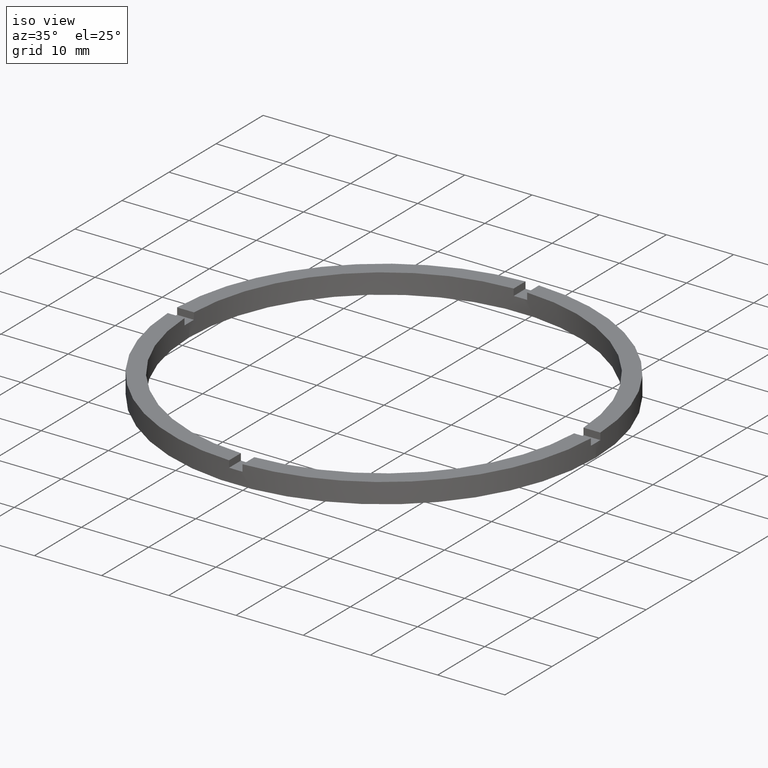
[diagram: clean part render]
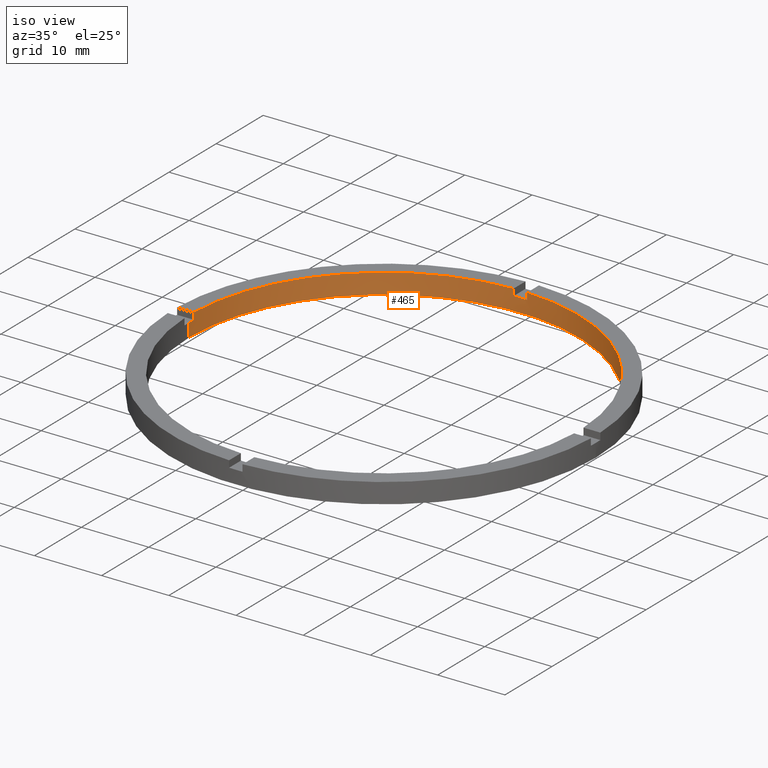
[diagram: same view with one face highlighted and labeled with its STEP entity id]
A machine part, iso view. The second image highlights one B-rep face of the part: STEP entity #465.
In plain terms, the highlighted cylindrical surface (partial cylindrical patch) has radius 29 mm, axis along (-0, -0, -1).
Its self-contained STEP definition (entity closure, byte-faithful):
#2 = ORIENTED_EDGE ( 'NONE', *, *, #430, .T. ) ;
#3 = ORIENTED_EDGE ( 'NONE', *, *, #610, .T. ) ;
#8 = DIRECTION ( 'NONE',  ( 1.000000000000000000, 0.000000000000000000, 0.000000000000000000 ) ) ;
#17 = VECTOR ( 'NONE', #274, 1000.000000000000000 ) ;
#23 = VERTEX_POINT ( 'NONE', #662 ) ;
#47 = CIRCLE ( 'NONE', #144, 29.00000000000000000 ) ;
#66 = CARTESIAN_POINT ( 'NONE',  ( 29.00000000000000000, 3.551475717527324030E-15, 3.000000000000000000 ) ) ;
#67 = CARTESIAN_POINT ( 'NONE',  ( 0.9999999999999754641, 28.98275349237887966, 3.000000000000000000 ) ) ;
#75 = DIRECTION ( 'NONE',  ( -0.000000000000000000, -0.000000000000000000, -1.000000000000000000 ) ) ;
#78 = CIRCLE ( 'NONE', #293, 29.00000000000000000 ) ;
#80 = VECTOR ( 'NONE', #75, 1000.000000000000000 ) ;
#84 = DIRECTION ( 'NONE',  ( 0.000000000000000000, -0.000000000000000000, 1.000000000000000000 ) ) ;
#87 = EDGE_CURVE ( 'NONE', #266, #550, #684, .T. ) ;
#99 = AXIS2_PLACEMENT_3D ( 'NONE', #281, #84, #532 ) ;
#100 = LINE ( 'NONE', #676, #80 ) ;
#102 = DIRECTION ( 'NONE',  ( 0.000000000000000000, 0.000000000000000000, 1.000000000000000000 ) ) ;
#106 = VECTOR ( 'NONE', #188, 1000.000000000000000 ) ;
#110 = AXIS2_PLACEMENT_3D ( 'NONE', #319, #126, #240 ) ;
#126 = DIRECTION ( 'NONE',  ( 0.000000000000000000, 0.000000000000000000, 1.000000000000000000 ) ) ;
#131 = CARTESIAN_POINT ( 'NONE',  ( 0.000000000000000000, 0.000000000000000000, 3.000000000000000000 ) ) ;
#144 = AXIS2_PLACEMENT_3D ( 'NONE', #437, #570, #736 ) ;
#152 = EDGE_CURVE ( 'NONE', #23, #205, #177, .T. ) ;
#176 = CARTESIAN_POINT ( 'NONE',  ( 0.000000000000000000, 0.000000000000000000, 2.000000000000000000 ) ) ;
#177 = LINE ( 'NONE', #497, #196 ) ;
#188 = DIRECTION ( 'NONE',  ( -0.000000000000000000, -0.000000000000000000, -1.000000000000000000 ) ) ;
#190 = EDGE_CURVE ( 'NONE', #451, #772, #378, .T. ) ;
#196 = VECTOR ( 'NONE', #556, 1000.000000000000000 ) ;
#204 = DIRECTION ( 'NONE',  ( -0.000000000000000000, -0.000000000000000000, -1.000000000000000000 ) ) ;
#205 = VERTEX_POINT ( 'NONE', #328 ) ;
#209 = ORIENTED_EDGE ( 'NONE', *, *, #651, .T. ) ;
#210 = ORIENTED_EDGE ( 'NONE', *, *, #780, .F. ) ;
#240 = DIRECTION ( 'NONE',  ( 1.000000000000000000, 0.000000000000000000, 0.000000000000000000 ) ) ;
#260 = CARTESIAN_POINT ( 'NONE',  ( 0.000000000000000000, 0.000000000000000000, 3.000000000000000000 ) ) ;
#266 = VERTEX_POINT ( 'NONE', #581 ) ;
#274 = DIRECTION ( 'NONE',  ( 0.000000000000000000, 0.000000000000000000, 1.000000000000000000 ) ) ;
#281 = CARTESIAN_POINT ( 'NONE',  ( 0.000000000000000000, 0.000000000000000000, 2.000000000000000000 ) ) ;
#293 = AXIS2_PLACEMENT_3D ( 'NONE', #176, #102, #8 ) ;
#294 = VERTEX_POINT ( 'NONE', #323 ) ;
#318 = EDGE_CURVE ( 'NONE', #456, #559, #566, .T. ) ;
#319 = CARTESIAN_POINT ( 'NONE',  ( 0.000000000000000000, 0.000000000000000000, 0.000000000000000000 ) ) ;
#323 = CARTESIAN_POINT ( 'NONE',  ( -1.000000000000024425, 28.98275349237887610, 3.000000000000000000 ) ) ;
#328 = CARTESIAN_POINT ( 'NONE',  ( -29.00000000000000000, 0.000000000000000000, 0.000000000000000000 ) ) ;
#332 = DIRECTION ( 'NONE',  ( 1.000000000000000000, 0.000000000000000000, 0.000000000000000000 ) ) ;
#337 = AXIS2_PLACEMENT_3D ( 'NONE', #260, #650, #544 ) ;
#340 = EDGE_CURVE ( 'NONE', #451, #559, #47, .T. ) ;
#351 = CARTESIAN_POINT ( 'NONE',  ( 28.98275349237888321, 0.9999999999998414602, 3.000000000000000000 ) ) ;
#358 = CYLINDRICAL_SURFACE ( 'NONE', #337, 29.00000000000000000 ) ;
#360 = DIRECTION ( 'NONE',  ( 0.000000000000000000, 0.000000000000000000, 1.000000000000000000 ) ) ;
#361 = CIRCLE ( 'NONE', #99, 29.00000000000000000 ) ;
#364 = CIRCLE ( 'NONE', #741, 29.00000000000000000 ) ;
#371 = FACE_OUTER_BOUND ( 'NONE', #513, .T. ) ;
#374 = VECTOR ( 'NONE', #360, 1000.000000000000000 ) ;
#378 = LINE ( 'NONE', #389, #106 ) ;
#384 = EDGE_CURVE ( 'NONE', #294, #751, #514, .T. ) ;
#389 = CARTESIAN_POINT ( 'NONE',  ( 28.98275349237888321, 0.9999999999998414602, 3.000000000000000000 ) ) ;
#423 = DIRECTION ( 'NONE',  ( 1.000000000000000000, 0.000000000000000000, 0.000000000000000000 ) ) ;
#430 = EDGE_CURVE ( 'NONE', #266, #772, #78, .T. ) ;
#433 = EDGE_CURVE ( 'NONE', #550, #205, #613, .T. ) ;
#436 = ORIENTED_EDGE ( 'NONE', *, *, #318, .F. ) ;
#437 = CARTESIAN_POINT ( 'NONE',  ( 0.000000000000000000, 0.000000000000000000, 3.000000000000000000 ) ) ;
#442 = ORIENTED_EDGE ( 'NONE', *, *, #340, .T. ) ;
#451 = VERTEX_POINT ( 'NONE', #351 ) ;
#456 = VERTEX_POINT ( 'NONE', #589 ) ;
#465 = ADVANCED_FACE ( 'NONE', ( #371 ), #358, .F. ) ;
#487 = ORIENTED_EDGE ( 'NONE', *, *, #87, .F. ) ;
#496 = VERTEX_POINT ( 'NONE', #555 ) ;
#497 = CARTESIAN_POINT ( 'NONE',  ( -29.00000000000000000, 0.000000000000000000, 3.000000000000000000 ) ) ;
#513 = EDGE_LOOP ( 'NONE', ( #487, #2, #783, #442, #436, #209, #536, #740, #210, #3, #694, #529 ) ) ;
#514 = CIRCLE ( 'NONE', #592, 29.00000000000000000 ) ;
#529 = ORIENTED_EDGE ( 'NONE', *, *, #433, .F. ) ;
#532 = DIRECTION ( 'NONE',  ( 1.000000000000000000, 0.000000000000000000, 0.000000000000000000 ) ) ;
#536 = ORIENTED_EDGE ( 'NONE', *, *, #646, .F. ) ;
#544 = DIRECTION ( 'NONE',  ( -1.000000000000000000, 0.000000000000000000, 0.000000000000000000 ) ) ;
#550 = VERTEX_POINT ( 'NONE', #695 ) ;
#555 = CARTESIAN_POINT ( 'NONE',  ( -28.98275349237887966, 0.9999999999999746869, 2.000000000000000000 ) ) ;
#556 = DIRECTION ( 'NONE',  ( -0.000000000000000000, -0.000000000000000000, -1.000000000000000000 ) ) ;
#559 = VERTEX_POINT ( 'NONE', #582 ) ;
#566 = LINE ( 'NONE', #67, #17 ) ;
#568 = VERTEX_POINT ( 'NONE', #586 ) ;
#570 = DIRECTION ( 'NONE',  ( 0.000000000000000000, 0.000000000000000000, 1.000000000000000000 ) ) ;
#581 = CARTESIAN_POINT ( 'NONE',  ( 29.00000000000000000, 3.551475717527324030E-15, 2.000000000000000000 ) ) ;
#582 = CARTESIAN_POINT ( 'NONE',  ( 0.9999999999999754641, 28.98275349237887966, 3.000000000000000000 ) ) ;
#586 = CARTESIAN_POINT ( 'NONE',  ( -1.000000000000024425, 28.98275349237887610, 2.000000000000000000 ) ) ;
#588 = CARTESIAN_POINT ( 'NONE',  ( 0.000000000000000000, 0.000000000000000000, 2.000000000000000000 ) ) ;
#589 = CARTESIAN_POINT ( 'NONE',  ( 0.9999999999999754641, 28.98275349237887966, 2.000000000000000000 ) ) ;
#592 = AXIS2_PLACEMENT_3D ( 'NONE', #131, #779, #423 ) ;
#594 = CARTESIAN_POINT ( 'NONE',  ( -28.98275349237887966, 0.9999999999999746869, 3.000000000000000000 ) ) ;
#609 = LINE ( 'NONE', #594, #374 ) ;
#610 = EDGE_CURVE ( 'NONE', #496, #23, #364, .T. ) ;
#613 = CIRCLE ( 'NONE', #110, 29.00000000000000000 ) ;
#645 = CARTESIAN_POINT ( 'NONE',  ( 28.98275349237888321, 0.9999999999998414602, 2.000000000000000000 ) ) ;
#646 = EDGE_CURVE ( 'NONE', #294, #568, #100, .T. ) ;
#650 = DIRECTION ( 'NONE',  ( -0.000000000000000000, -0.000000000000000000, -1.000000000000000000 ) ) ;
#651 = EDGE_CURVE ( 'NONE', #456, #568, #361, .T. ) ;
#662 = CARTESIAN_POINT ( 'NONE',  ( -29.00000000000000000, 0.000000000000000000, 2.000000000000000000 ) ) ;
#676 = CARTESIAN_POINT ( 'NONE',  ( -1.000000000000024425, 28.98275349237887610, 3.000000000000000000 ) ) ;
#681 = VECTOR ( 'NONE', #204, 1000.000000000000000 ) ;
#684 = LINE ( 'NONE', #66, #681 ) ;
#687 = CARTESIAN_POINT ( 'NONE',  ( -28.98275349237887966, 0.9999999999999746869, 3.000000000000000000 ) ) ;
#694 = ORIENTED_EDGE ( 'NONE', *, *, #152, .T. ) ;
#695 = CARTESIAN_POINT ( 'NONE',  ( 29.00000000000000000, 3.551475717527324030E-15, 0.000000000000000000 ) ) ;
#736 = DIRECTION ( 'NONE',  ( 1.000000000000000000, 0.000000000000000000, 0.000000000000000000 ) ) ;
#740 = ORIENTED_EDGE ( 'NONE', *, *, #384, .T. ) ;
#741 = AXIS2_PLACEMENT_3D ( 'NONE', #588, #782, #332 ) ;
#751 = VERTEX_POINT ( 'NONE', #687 ) ;
#772 = VERTEX_POINT ( 'NONE', #645 ) ;
#779 = DIRECTION ( 'NONE',  ( 0.000000000000000000, 0.000000000000000000, 1.000000000000000000 ) ) ;
#780 = EDGE_CURVE ( 'NONE', #496, #751, #609, .T. ) ;
#782 = DIRECTION ( 'NONE',  ( 0.000000000000000000, 0.000000000000000000, 1.000000000000000000 ) ) ;
#783 = ORIENTED_EDGE ( 'NONE', *, *, #190, .F. ) ;